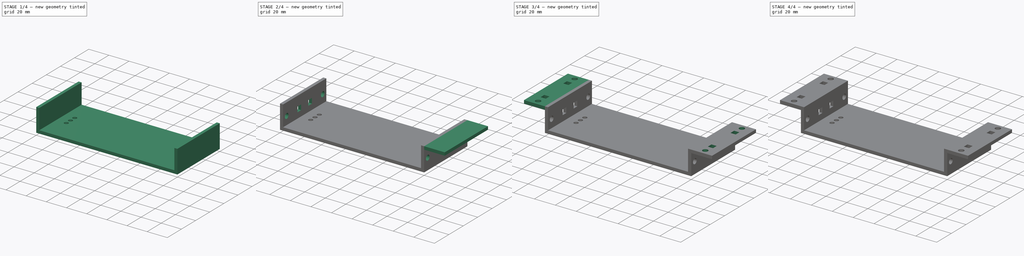
[diagram: build sequence overview — one tinted view per stage of 4, left to right]
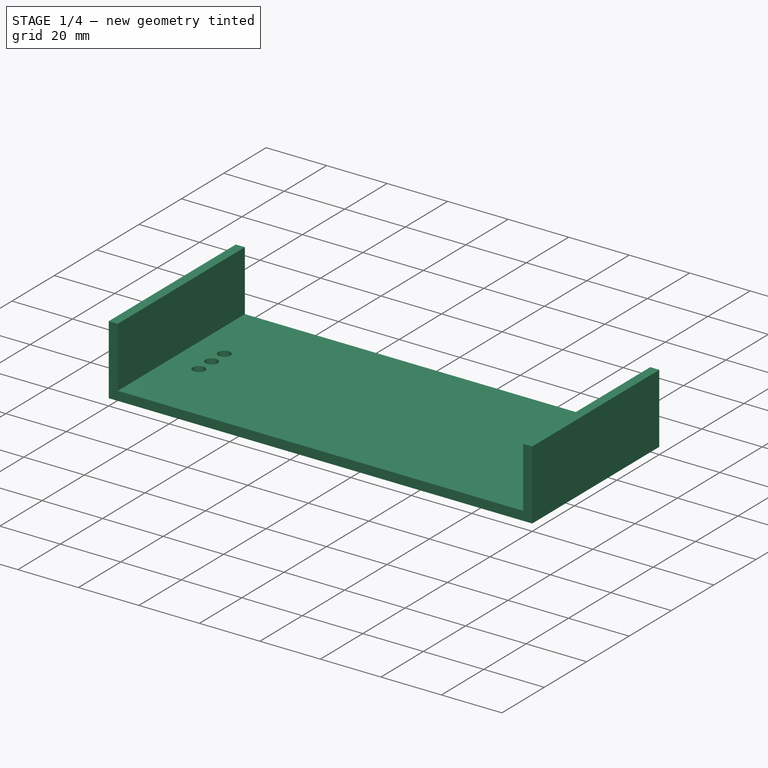
[diagram: stage 1 of 4 — iso view after this stage's code; geometry added in this stage tinted green]
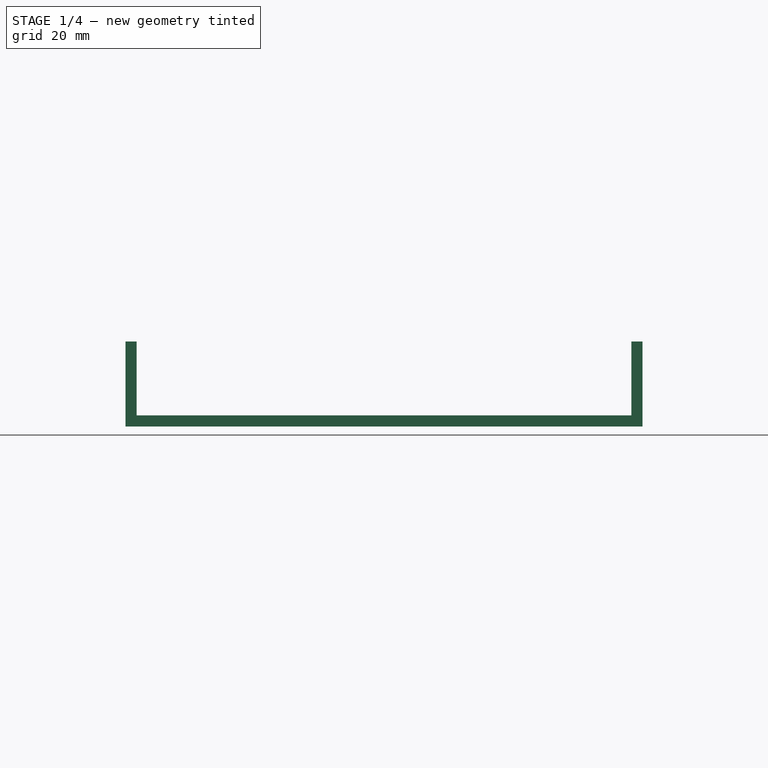
[diagram: stage 1 of 4 — front view after this stage's code; geometry added in this stage tinted green]
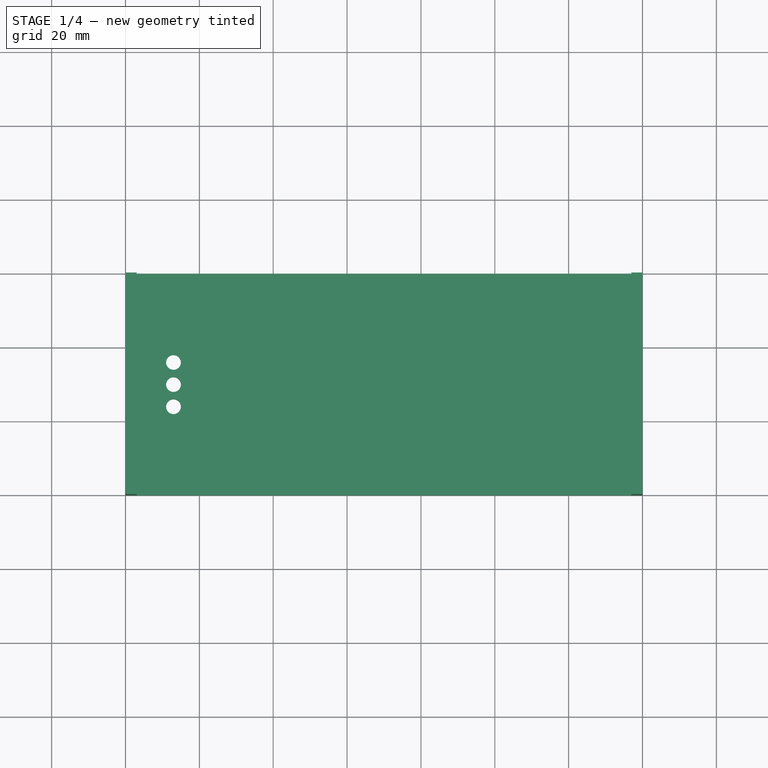
[diagram: stage 1 of 4 — top view after this stage's code; geometry added in this stage tinted green]
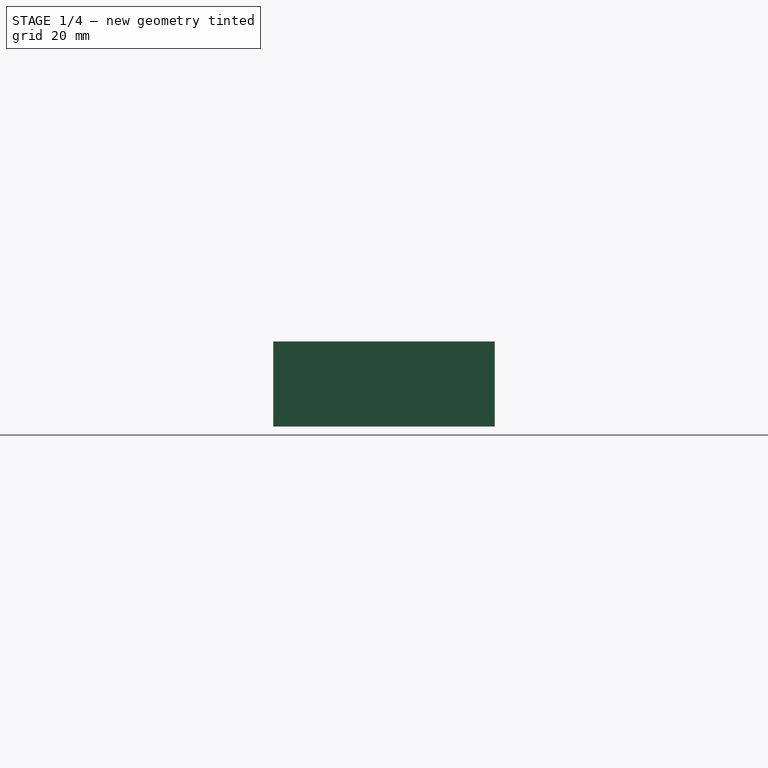
[diagram: stage 1 of 4 — right view after this stage's code; geometry added in this stage tinted green]
FCSTD DOCUMENT  (FreeCAD 0.16R6707 (Git))
Label: support guidage horizontal
License: All rights reserved
LicenseURL: http://en.wikipedia.org/wiki/All_rights_reserved
objects: Sketcher::SketchObject×8, PartDesign::Pad×4, PartDesign::Pocket×4, Part::FeaturePython×1
note: 25 computed .brp shape members not serialized (recipe doc carries the construction recipe); baked Part::Feature solids carry a one-line shape summary decoded from their .brp

FEATURE [Sketcher::SketchObject] Sketch
  sketch-geometry (10):
    g0: LineSegment StartX=0 StartY=0 StartZ=0 EndX=140 EndY=0 EndZ=0
    g1: LineSegment StartX=140 StartY=0 StartZ=0 EndX=140 EndY=60 EndZ=0
    g2: LineSegment StartX=140 StartY=60 StartZ=0 EndX=0 EndY=60 EndZ=0
    g3: LineSegment StartX=0 StartY=60 StartZ=0 EndX=0 EndY=0 EndZ=0
    g4: GeomPoint [constr] X=13 Y=30 Z=0
    g5: GeomPoint [constr] X=13 Y=24 Z=0
    g6: GeomPoint [constr] X=13 Y=36 Z=0
    g7: Circle CenterX=13 CenterY=36 CenterZ=0 NormalX=0 NormalY=0 NormalZ=1 Radius=2
    g8: Circle CenterX=13 CenterY=30 CenterZ=0 NormalX=0 NormalY=0 NormalZ=1 Radius=2
    g9: Circle CenterX=13 CenterY=24 CenterZ=0 NormalX=0 NormalY=0 NormalZ=1 Radius=2
  constraints (23):
    c: Coincident(g0,g1)
    c: Coincident(g1,g2)
    c: Coincident(g2,g3)
    c: Coincident(g3,g0)
    c: Horizontal(g0)
    c: Horizontal(g2)
    c: Vertical(g1)
    c: Vertical(g3)
    c: Coincident(g0,g-1)
    c: Distance(g3) = 60
    c: Distance(g2) = 140
    c: DistanceY(g4) = 30
    c: DistanceX(g4) = 13
    c: DistanceX(g4,g5) = 0
    c: DistanceX(g4,g6) = 0
    c: DistanceY(g4,g6) = 6
    c: DistanceY(g4,g5) = -6
    c: Coincident(g7,g6)
    c: Coincident(g8,g4)
    c: Coincident(g9,g5)
    c: Radius(g8) = 2
    c: Radius(g7) = 2
    c: Radius(g9) = 2
FEATURE [PartDesign::Pad] Pad
  Length = 3
  Length2 = 100
  Sketch = -> Sketch
  Type = 0
FEATURE [Sketcher::SketchObject] Sketch001
  Placement = pos=(0,0,3) rot=(0,0,1;0rad)
  Support = -> Pad [Face9]
  sketch-geometry (9):
    g0: LineSegment StartX=0 StartY=0 StartZ=0 EndX=3 EndY=0 EndZ=0
    g1: LineSegment StartX=3 StartY=0 StartZ=0 EndX=3 EndY=60 EndZ=0
    g2: LineSegment StartX=3 StartY=60 StartZ=0 EndX=0 EndY=60 EndZ=0
    g3: LineSegment StartX=0 StartY=60 StartZ=0 EndX=0 EndY=0 EndZ=0
    g4: GeomPoint [constr] X=140 Y=0 Z=0
    g5: LineSegment StartX=140 StartY=0 StartZ=0 EndX=137 EndY=0 EndZ=0
    g6: LineSegment StartX=137 StartY=0 StartZ=0 EndX=137 EndY=60 EndZ=0
    g7: LineSegment StartX=137 StartY=60 StartZ=0 EndX=140 EndY=60 EndZ=0
    g8: LineSegment StartX=140 StartY=60 StartZ=0 EndX=140 EndY=0 EndZ=0
  constraints (24):
    c: Coincident(g0,g1)
    c: Coincident(g1,g2)
    c: Coincident(g2,g3)
    c: Coincident(g3,g0)
    c: Horizontal(g0)
    c: Horizontal(g2)
    c: Vertical(g1)
    c: Vertical(g3)
    c: Coincident(g0,g-1)
    c: Distance(g3) = 60
    c: Distance(g2) = 3
    c: PointOnObject(g4,g-1)
    c: DistanceX(g4) = 140
    c: Coincident(g5,g6)
    c: Coincident(g6,g7)
    c: Coincident(g7,g8)
    c: Coincident(g8,g5)
    c: Horizontal(g5)
    c: Horizontal(g7)
    c: Vertical(g6)
    c: Vertical(g8)
    c: Coincident(g5,g4)
    c: Distance(g8) = 60
    c: Distance(g7) = 3
FEATURE [PartDesign::Pad] Pad001
  Length = 20
  Length2 = 100
  Sketch = -> Sketch001
  Type = 0
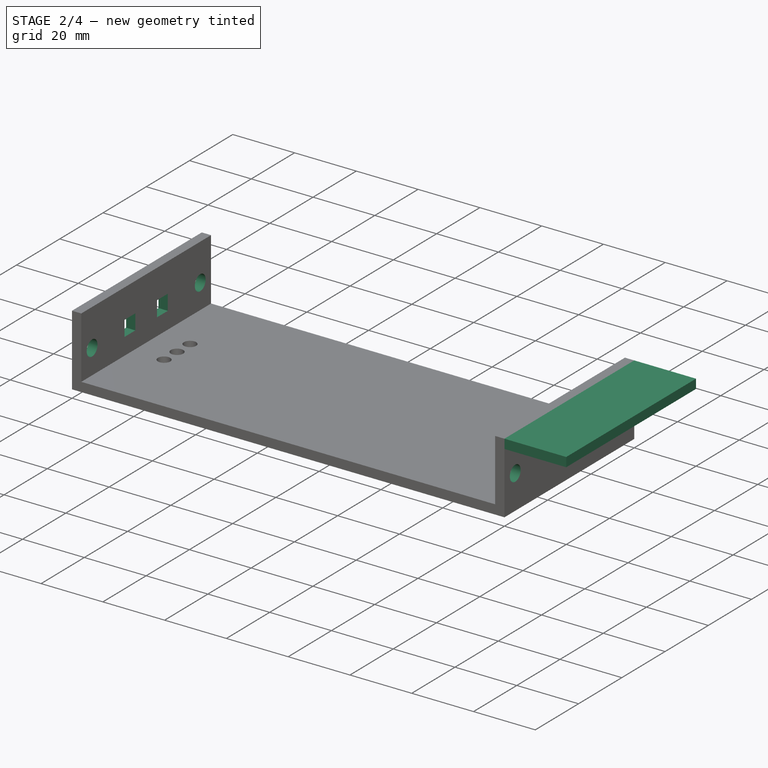
[diagram: stage 2 of 4 — iso view after this stage's code; geometry added in this stage tinted green]
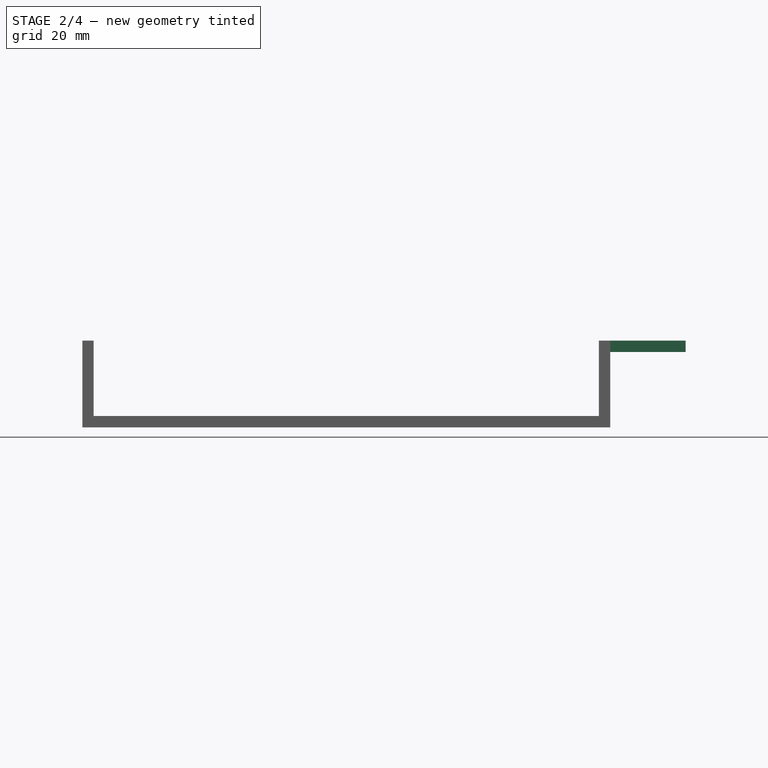
[diagram: stage 2 of 4 — front view after this stage's code; geometry added in this stage tinted green]
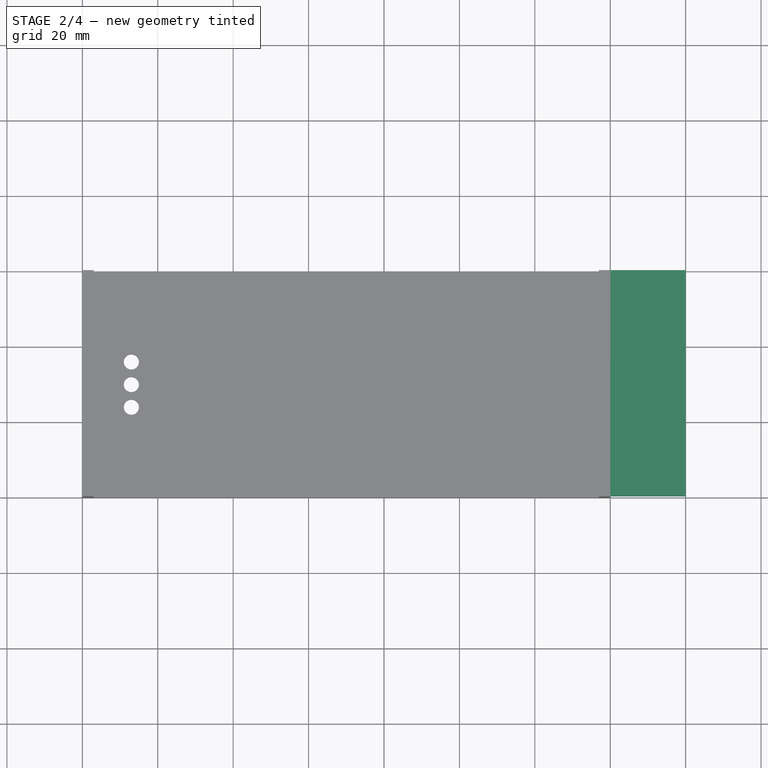
[diagram: stage 2 of 4 — top view after this stage's code; geometry added in this stage tinted green]
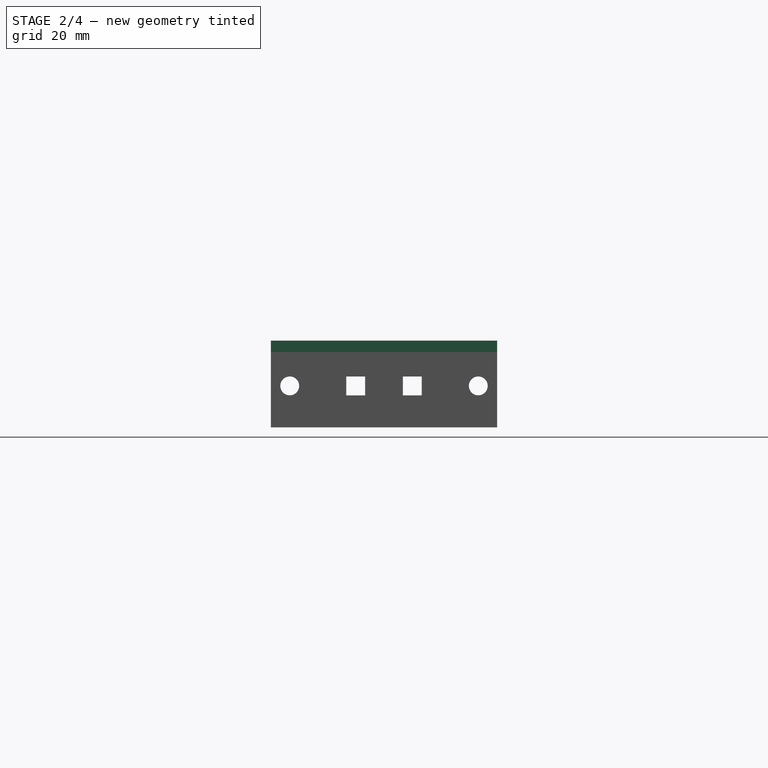
[diagram: stage 2 of 4 — right view after this stage's code; geometry added in this stage tinted green]
FEATURE [Sketcher::SketchObject] Sketch002
  Placement = pos=(140,0,0) rot=(0.57735,0.57735,0.57735;2.0944rad)
  Support = -> Pad001 [Face12]
  sketch-geometry (15):
    g0: GeomPoint [constr] X=55 Y=11 Z=0
    g1: Circle CenterX=55 CenterY=11 CenterZ=0 NormalX=0 NormalY=0 NormalZ=1 Radius=2.5
    g2: GeomPoint [constr] X=5 Y=11 Z=0
    g3: Circle CenterX=5 CenterY=11 CenterZ=0 NormalX=0 NormalY=0 NormalZ=1 Radius=2.5
    g4: GeomPoint [constr] X=30 Y=11 Z=0
    g5: GeomPoint [constr] X=25 Y=13.5 Z=0
    g6: GeomPoint [constr] X=35 Y=13.5 Z=0
    g7: LineSegment StartX=25 StartY=13.5 StartZ=0 EndX=20 EndY=13.5 EndZ=0
    g8: LineSegment StartX=20 StartY=13.5 StartZ=0 EndX=20 EndY=8.5 EndZ=0
    g9: LineSegment StartX=20 StartY=8.5 StartZ=0 EndX=25 EndY=8.5 EndZ=0
    g10: LineSegment StartX=25 StartY=8.5 StartZ=0 EndX=25 EndY=13.5 EndZ=0
    g11: LineSegment StartX=35 StartY=13.5 StartZ=0 EndX=40 EndY=13.5 EndZ=0
    g12: LineSegment StartX=40 StartY=13.5 StartZ=0 EndX=40 EndY=8.5 EndZ=0
    g13: LineSegment StartX=40 StartY=8.5 StartZ=0 EndX=35 EndY=8.5 EndZ=0
    g14: LineSegment StartX=35 StartY=8.5 StartZ=0 EndX=35 EndY=13.5 EndZ=0
  constraints (36):
    c: DistanceX(g0) = 55
    c: DistanceY(g0) = 11
    c: Coincident(g1,g0)
    c: Radius(g1) = 2.5
    c: DistanceY(g0,g2) = 0
    c: DistanceX(g2,g0) = 50
    c: Coincident(g3,g2)
    c: Radius(g3) = 2.5
    c: DistanceY(g0,g4) = 0
    c: DistanceX(g4,g0) = 25
    c: DistanceY(g4,g5) = 2.5
    c: DistanceX(g5,g4) = 5
    c: DistanceX(g4,g6) = 5
    c: DistanceY(g4,g6) = 2.5
    c: Coincident(g7,g8)
    c: Coincident(g8,g9)
    c: Coincident(g9,g10)
    c: Coincident(g10,g7)
    c: Horizontal(g7)
    c: Horizontal(g9)
    c: Vertical(g8)
    c: Vertical(g10)
    c: Coincident(g7,g5)
    c: Coincident(g11,g12)
    c: Coincident(g12,g13)
    c: Coincident(g13,g14)
    c: Coincident(g14,g11)
    c: Horizontal(g11)
    c: Horizontal(g13)
    c: Vertical(g12)
    c: Vertical(g14)
    c: Coincident(g11,g6)
    c: Distance(g7) = 5
    c: Distance(g8) = 5
    c: Distance(g14) = 5
    c: Distance(g11) = 5
FEATURE [PartDesign::Pocket] Pocket
  Length = 5
  Sketch = -> Sketch002
  Type = 1
FEATURE [Sketcher::SketchObject] Sketch003
  Placement = pos=(140,0,0) rot=(0.57735,0.57735,0.57735;2.0944rad)
  Support = -> Pocket [Face12]
  sketch-geometry (5):
    g0: GeomPoint [constr] X=0 Y=20 Z=0
    g1: LineSegment StartX=0 StartY=20 StartZ=0 EndX=60 EndY=20 EndZ=0
    g2: LineSegment StartX=60 StartY=20 StartZ=0 EndX=60 EndY=23 EndZ=0
    g3: LineSegment StartX=60 StartY=23 StartZ=0 EndX=0 EndY=23 EndZ=0
    g4: LineSegment StartX=0 StartY=23 StartZ=0 EndX=0 EndY=20 EndZ=0
  constraints (13):
    c: DistanceY(g0) = 20
    c: DistanceX(g0) = 0
    c: Coincident(g1,g2)
    c: Coincident(g2,g3)
    c: Coincident(g3,g4)
    c: Coincident(g4,g1)
    c: Horizontal(g1)
    c: Horizontal(g3)
    c: Vertical(g2)
    c: Vertical(g4)
    c: Coincident(g1,g0)
    c: Distance(g3) = 60
    c: Distance(g2) = 3
FEATURE [Sketcher::SketchObject] Sketch004
  Placement = pos=(0,0,0) rot=(0.57735,-0.57735,-0.57735;2.0944rad)
  Support = -> Pocket [Face15]
  sketch-geometry (5):
    g0: GeomPoint [constr] X=0 Y=20 Z=0
    g1: LineSegment StartX=0 StartY=20 StartZ=0 EndX=-60 EndY=20 EndZ=0
    g2: LineSegment StartX=-60 StartY=20 StartZ=0 EndX=-60 EndY=23 EndZ=0
    g3: LineSegment StartX=-60 StartY=23 StartZ=0 EndX=0 EndY=23 EndZ=0
    g4: LineSegment StartX=0 StartY=23 StartZ=0 EndX=0 EndY=20 EndZ=0
  constraints (13):
    c: PointOnObject(g0,g-2)
    c: DistanceY(g0) = 20
    c: Coincident(g1,g2)
    c: Coincident(g2,g3)
    c: Coincident(g3,g4)
    c: Coincident(g4,g1)
    c: Horizontal(g1)
    c: Horizontal(g3)
    c: Vertical(g2)
    c: Vertical(g4)
    c: Coincident(g1,g0)
    c: Distance(g3) = 60
    c: Distance(g2) = 3
FEATURE [PartDesign::Pad] Pad002
  Length = 20
  Length2 = 100
  Sketch = -> Sketch003
  Type = 0
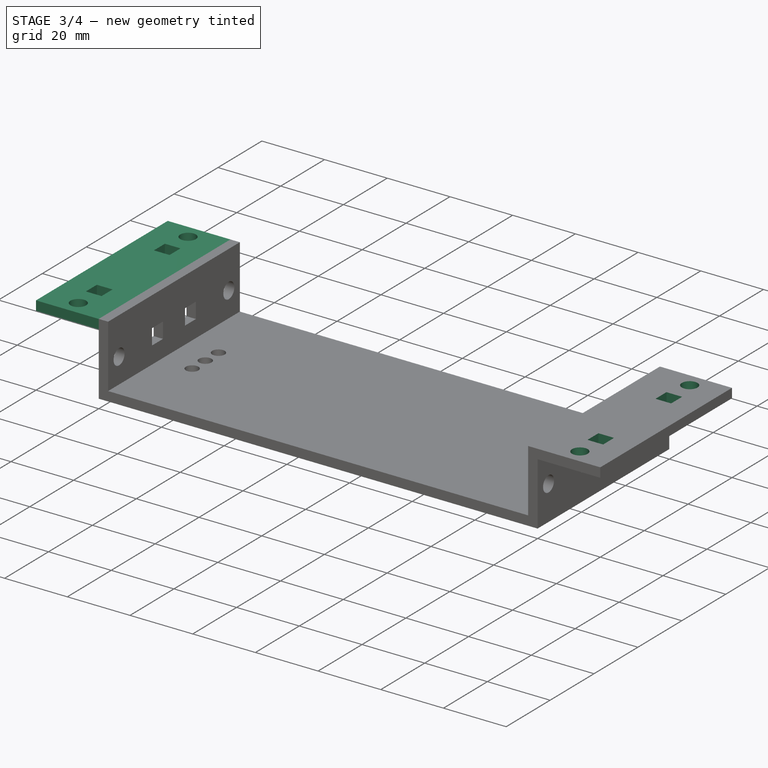
[diagram: stage 3 of 4 — iso view after this stage's code; geometry added in this stage tinted green]
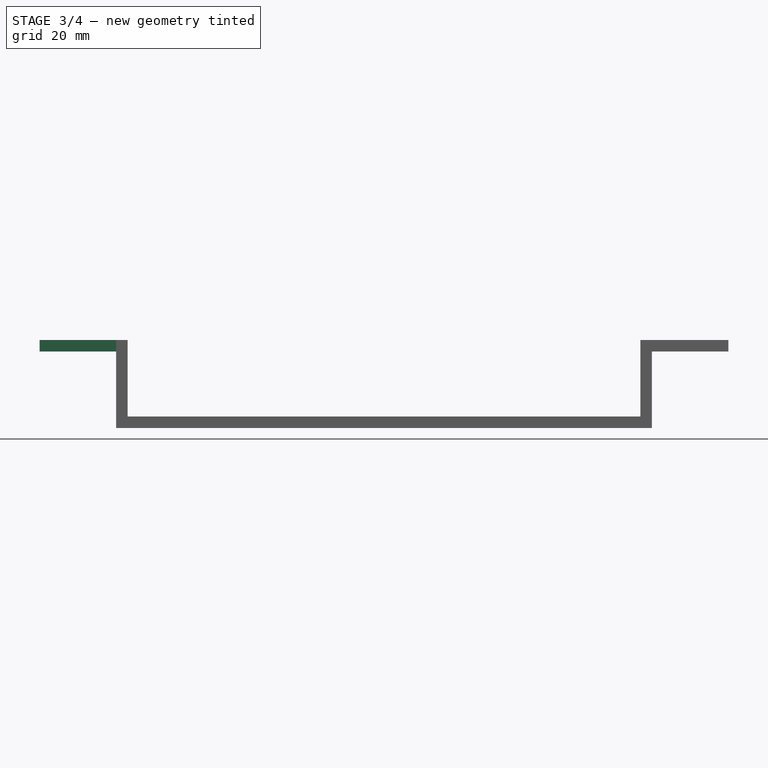
[diagram: stage 3 of 4 — front view after this stage's code; geometry added in this stage tinted green]
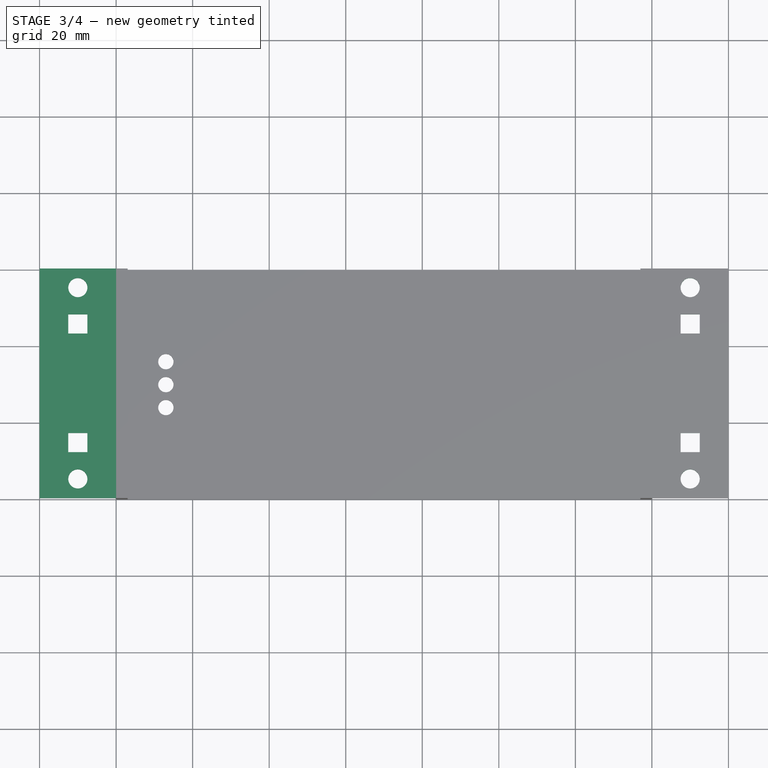
[diagram: stage 3 of 4 — top view after this stage's code; geometry added in this stage tinted green]
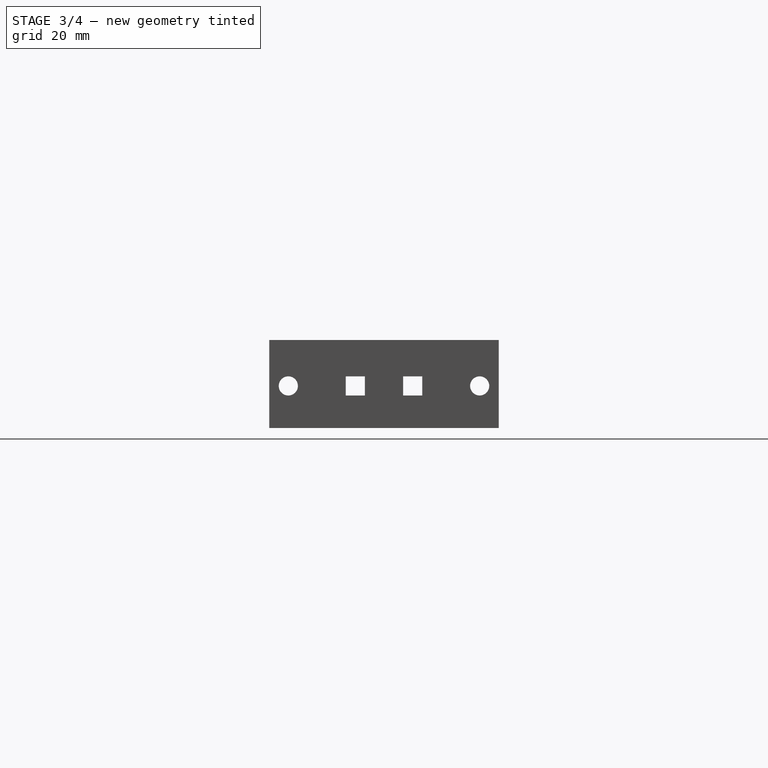
[diagram: stage 3 of 4 — right view after this stage's code; geometry added in this stage tinted green]
FEATURE [PartDesign::Pad] Pad003
  Length = 20
  Length2 = 100
  Sketch = -> Sketch004
  Type = 0
FEATURE [Sketcher::SketchObject] Sketch005
  Placement = pos=(0,0,23) rot=(0,0,1;0rad)
  Support = -> Pad003 [Face43]
  sketch-geometry (14):
    g0: GeomPoint [constr] X=-10 Y=5 Z=0
    g1: GeomPoint [constr] X=-10 Y=55 Z=0
    g2: Circle CenterX=-10 CenterY=55 CenterZ=0 NormalX=0 NormalY=0 NormalZ=1 Radius=2.5
    g3: Circle CenterX=-10 CenterY=5 CenterZ=0 NormalX=0 NormalY=0 NormalZ=1 Radius=2.5
    g4: GeomPoint [constr] X=-7.5 Y=12 Z=0
    g5: GeomPoint [constr] X=-7.5 Y=48 Z=0
    g6: LineSegment StartX=-7.5 StartY=12 StartZ=0 EndX=-12.5 EndY=12 EndZ=0
    g7: LineSegment StartX=-12.5 StartY=12 StartZ=0 EndX=-12.5 EndY=17 EndZ=0
    g8: LineSegment StartX=-12.5 StartY=17 StartZ=0 EndX=-7.5 EndY=17 EndZ=0
    g9: LineSegment StartX=-7.5 StartY=17 StartZ=0 EndX=-7.5 EndY=12 EndZ=0
    g10: LineSegment StartX=-7.5 StartY=48 StartZ=0 EndX=-12.5 EndY=48 EndZ=0
    g11: LineSegment StartX=-12.5 StartY=48 StartZ=0 EndX=-12.5 EndY=43 EndZ=0
    g12: LineSegment StartX=-12.5 StartY=43 StartZ=0 EndX=-7.5 EndY=43 EndZ=0
    g13: LineSegment StartX=-7.5 StartY=43 StartZ=0 EndX=-7.5 EndY=48 EndZ=0
  constraints (34):
    c: DistanceY(g0) = 5
    c: DistanceY(g0,g1) = 50
    c: DistanceX(g0,g1) = 0
    c: DistanceX(g0,g-1) = 10
    c: Coincident(g2,g1)
    c: Coincident(g3,g0)
    c: Radius(g2) = 2.5
    c: Radius(g3) = 2.5
    c: DistanceX(g4,g5) = 0
    c: DistanceX(g4,g-1) = 7.5
    c: DistanceY(g-1,g4) = 12
    c: Coincident(g6,g7)
    c: Coincident(g7,g8)
    c: Coincident(g8,g9)
    c: Coincident(g9,g6)
    c: Horizontal(g6)
    c: Horizontal(g8)
    c: Vertical(g7)
    c: Vertical(g9)
    c: Coincident(g6,g4)
    c: Distance(g7) = 5
    c: Distance(g8) = 5
    c: DistanceY(g4,g5) = 36
    c: Coincident(g10,g11)
    c: Coincident(g11,g12)
    c: Coincident(g12,g13)
    c: Coincident(g13,g10)
    c: Horizontal(g10)
    c: Horizontal(g12)
    c: Vertical(g11)
    c: Vertical(g13)
    c: Coincident(g10,g5)
    c: Distance(g10) = 5
    c: Distance(g11) = 5
FEATURE [PartDesign::Pocket] Pocket001
  Length = 5
  Sketch = -> Sketch005
  Type = 1
FEATURE [Sketcher::SketchObject] Sketch006
  Placement = pos=(0,0,23) rot=(0,0,1;0rad)
  Support = -> Pad002 [Face43]
  sketch-geometry (14):
    g0: GeomPoint [constr] X=150 Y=5 Z=0
    g1: GeomPoint [constr] X=150 Y=55 Z=0
    g2: Circle CenterX=150 CenterY=55 CenterZ=0 NormalX=0 NormalY=0 NormalZ=1 Radius=2.5
    g3: Circle CenterX=150 CenterY=5 CenterZ=0 NormalX=0 NormalY=0 NormalZ=1 Radius=2.5
    g4: GeomPoint [constr] X=147.5 Y=12 Z=0
    g5: GeomPoint [constr] X=147.5 Y=48 Z=0
    g6: LineSegment StartX=147.5 StartY=12 StartZ=0 EndX=152.5 EndY=12 EndZ=0
    g7: LineSegment StartX=152.5 StartY=12 StartZ=0 EndX=152.5 EndY=17 EndZ=0
    g8: LineSegment StartX=152.5 StartY=17 StartZ=0 EndX=147.5 EndY=17 EndZ=0
    g9: LineSegment StartX=147.5 StartY=17 StartZ=0 EndX=147.5 EndY=12 EndZ=0
    g10: LineSegment StartX=147.5 StartY=48 StartZ=0 EndX=152.5 EndY=48 EndZ=0
    g11: LineSegment StartX=152.5 StartY=48 StartZ=0 EndX=152.5 EndY=43 EndZ=0
    g12: LineSegment StartX=152.5 StartY=43 StartZ=0 EndX=147.5 EndY=43 EndZ=0
    g13: LineSegment StartX=147.5 StartY=43 StartZ=0 EndX=147.5 EndY=48 EndZ=0
  constraints (34):
    c: DistanceY(g0) = 5
    c: DistanceX(g0) = 150
    c: DistanceX(g1,g0) = 0
    c: DistanceY(g0,g1) = 50
    c: Coincident(g2,g1)
    c: Coincident(g3,g0)
    c: Radius(g2) = 2.5
    c: Radius(g3) = 2.5
    c: DistanceY(g4,g5) = 36
    c: DistanceX(g4,g5) = 0
    c: DistanceX(g0,g4) = -2.5
    c: DistanceY(g4) = 12
    c: Coincident(g6,g7)
    c: Coincident(g7,g8)
    c: Coincident(g8,g9)
    c: Coincident(g9,g6)
    c: Horizontal(g6)
    c: Horizontal(g8)
    c: Vertical(g7)
    c: Vertical(g9)
    c: Coincident(g6,g4)
    c: Coincident(g10,g11)
    c: Coincident(g11,g12)
    c: Coincident(g12,g13)
    c: Coincident(g13,g10)
    c: Horizontal(g10)
    c: Horizontal(g12)
    c: Vertical(g11)
    c: Vertical(g13)
    c: Coincident(g10,g5)
    c: Distance(g10) = 5
    c: Distance(g11) = 5
    c: Distance(g8) = 5
    c: Distance(g7) = 5
FEATURE [PartDesign::Pocket] Pocket002
  Length = 3
  Sketch = -> Sketch006
  Type = 0
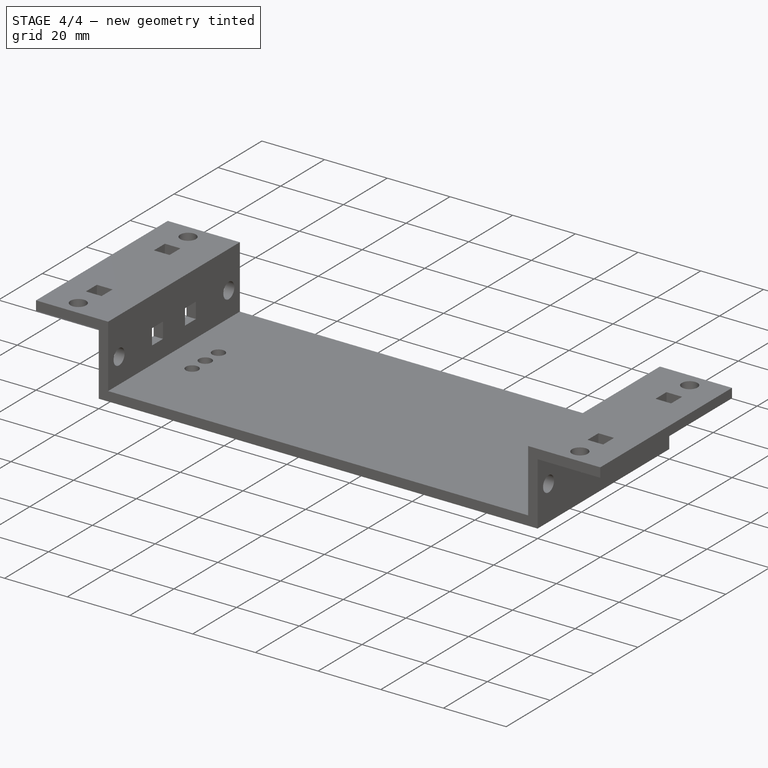
[diagram: stage 4 of 4 — iso view after this stage's code; geometry added in this stage tinted green]
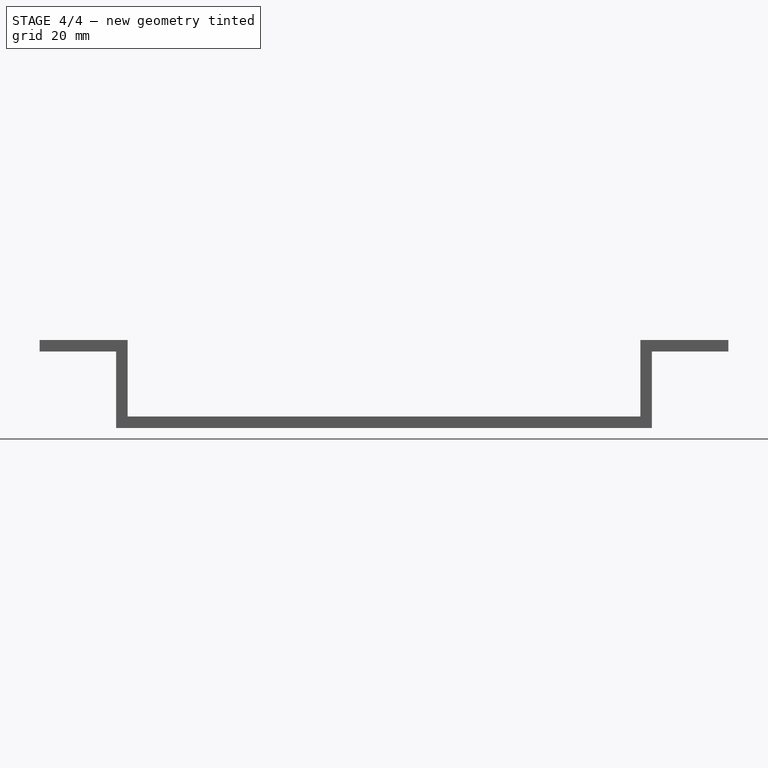
[diagram: stage 4 of 4 — front view after this stage's code; geometry added in this stage tinted green]
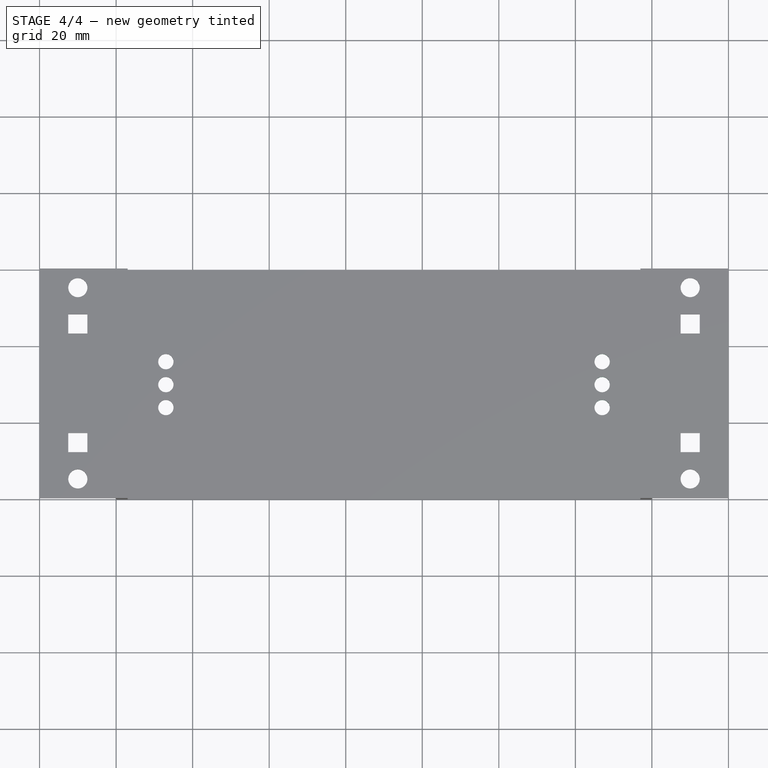
[diagram: stage 4 of 4 — top view after this stage's code; geometry added in this stage tinted green]
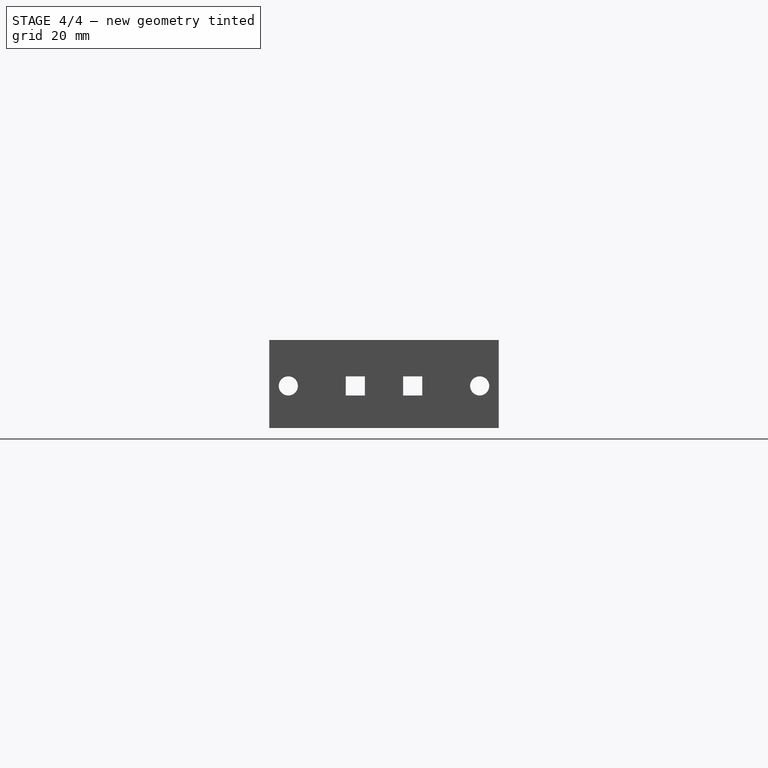
[diagram: stage 4 of 4 — right view after this stage's code; geometry added in this stage tinted green]
FEATURE [Part::FeaturePython] Connect  # WARN: FeaturePython — macro-defined, semantics opaque (R4)
  Base = -> Pocket001
  Mode = 1
  Tool = -> Pocket002
FEATURE [Sketcher::SketchObject] Sketch007
  Placement = pos=(0,0,0) rot=(1,0,0;3.14159rad)
  Support = -> Connect [Face34]
  sketch-geometry (6):
    g0: GeomPoint [constr] X=127 Y=-30 Z=0
    g1: GeomPoint [constr] X=127 Y=-24 Z=0
    g2: GeomPoint [constr] X=127 Y=-36 Z=0
    g3: Circle CenterX=127 CenterY=-24 CenterZ=0 NormalX=0 NormalY=0 NormalZ=1 Radius=2
    g4: Circle CenterX=127 CenterY=-30 CenterZ=0 NormalX=0 NormalY=0 NormalZ=1 Radius=2
    g5: Circle CenterX=127 CenterY=-36 CenterZ=0 NormalX=0 NormalY=0 NormalZ=1 Radius=2
  constraints (12):
    c: DistanceY(g-1,g0) = -30
    c: DistanceX(g-1,g0) = 127
    c: DistanceY(g0,g1) = 6
    c: DistanceY(g2,g0) = 6
    c: DistanceX(g0,g1) = 0
    c: DistanceX(g0,g2) = 0
    c: Coincident(g3,g1)
    c: Coincident(g4,g0)
    c: Coincident(g5,g2)
    c: Radius(g3) = 2
    c: Radius(g4) = 2
    c: Radius(g5) = 2
FEATURE [PartDesign::Pocket] Pocket003
  Length = 3
  Sketch = -> Sketch007
  Type = 0
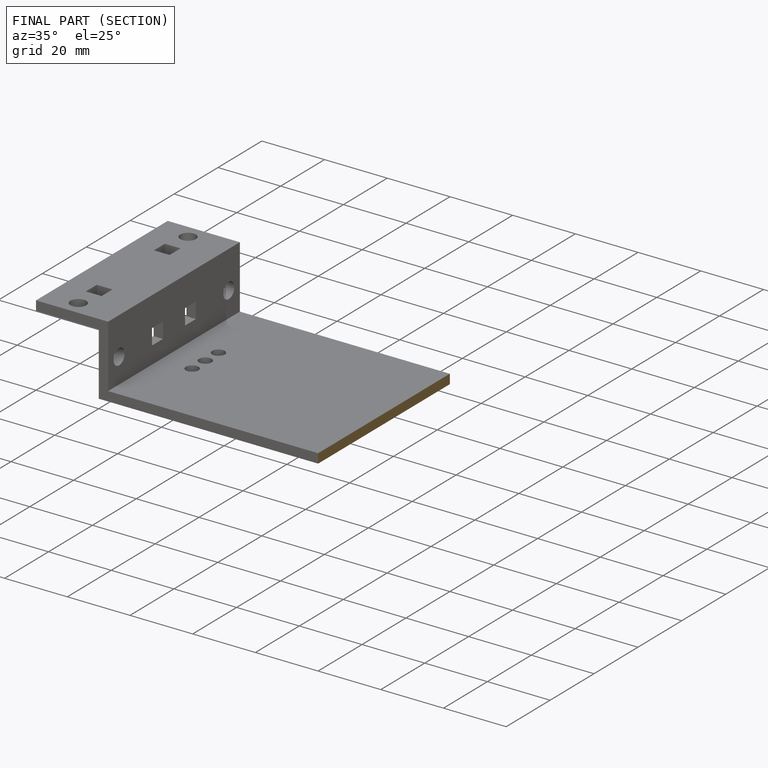
[diagram: finished part — half-section view (interior)]
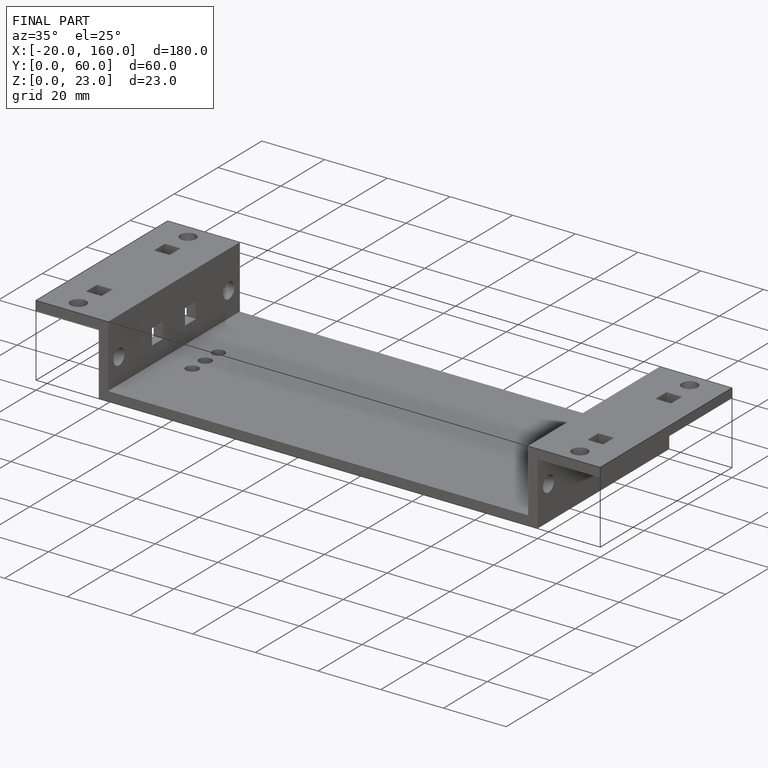
[diagram: finished part — iso view with bounding-box wireframe]
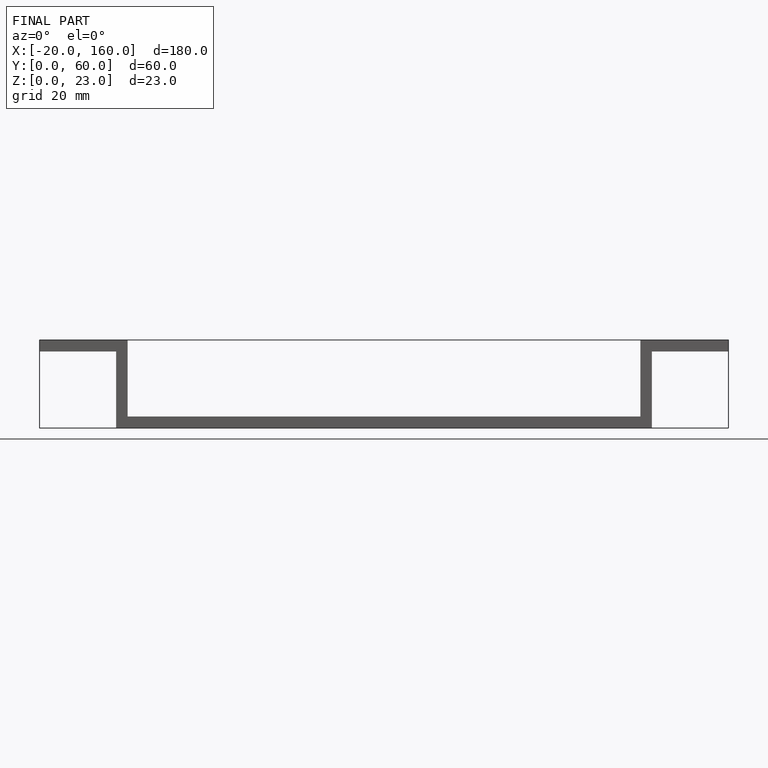
[diagram: finished part — front view with bounding-box wireframe]
